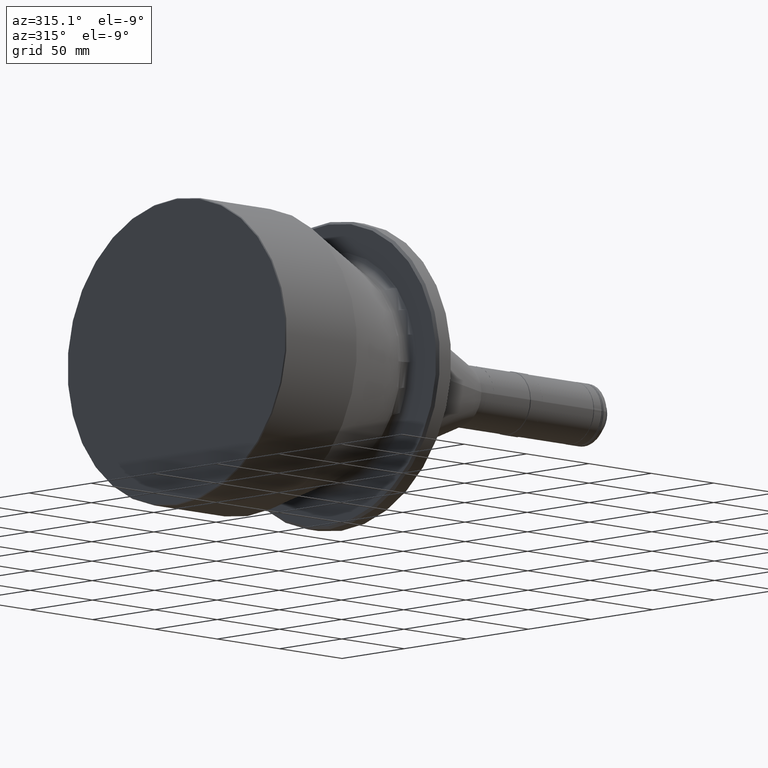
[diagram: clean part render]
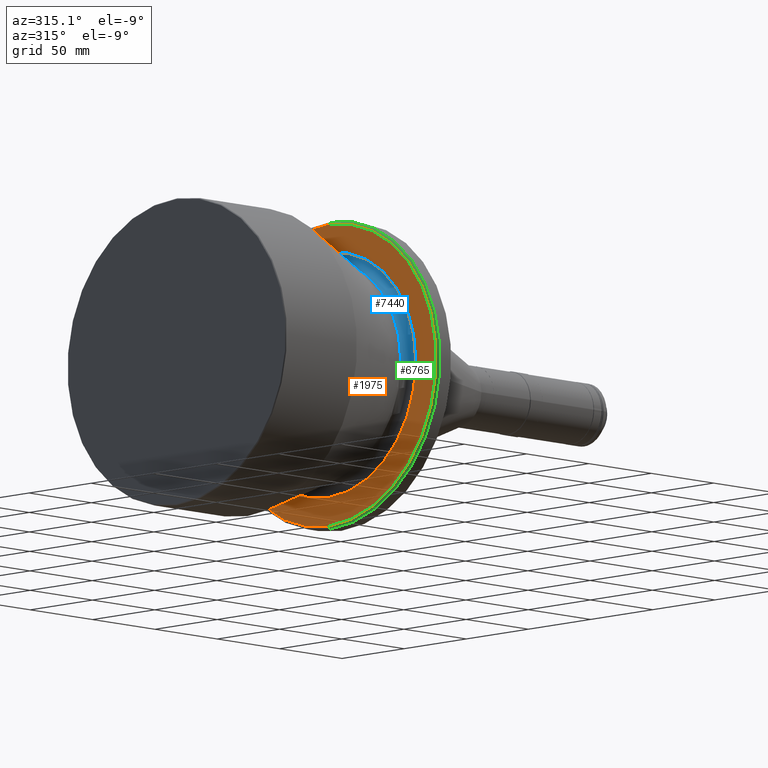
[diagram: same view with three faces highlighted in distinct colors, each labeled with its STEP entity id]
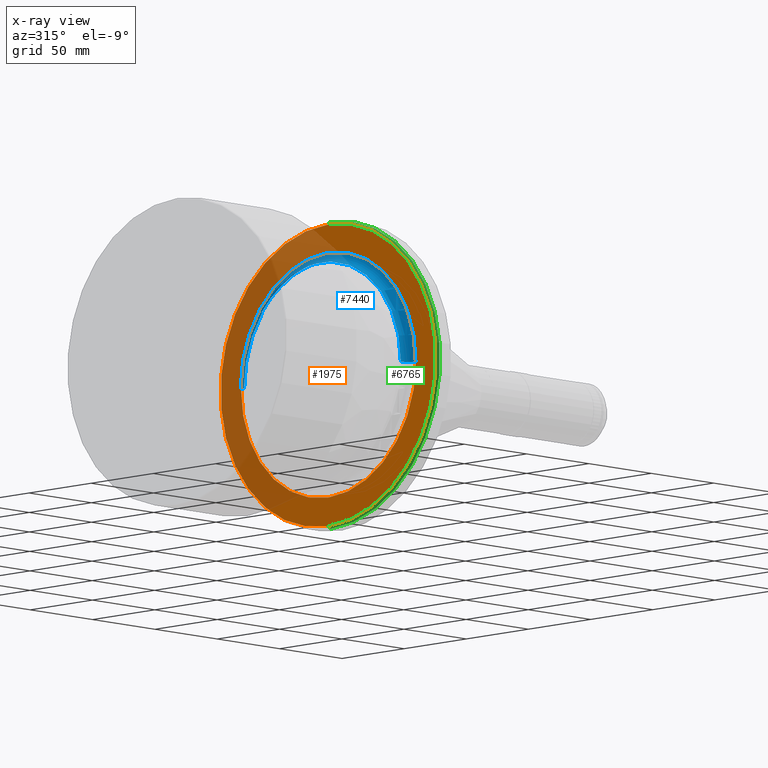
[diagram: x-ray of the same camera — body ghosted, the three highlighted faces saturated]
A machine part, auxiliary view with three faces highlighted in distinct colors.
The next image is the same camera in x-ray (body ghosted, the three faces saturated) — at least one of them is partly hidden behind the body in this view.
Their STEP definitions:

[orange] entity #1975 — the highlighted planar face has unit normal (-1, 0, 0).
#327 = ORIENTED_EDGE ( 'NONE', *, *, #5658, .F. ) ;
#517 = AXIS2_PLACEMENT_3D ( 'NONE', #7497, #2226, #5721 ) ;
#642 = VERTEX_POINT ( 'NONE', #5279 ) ;
#982 = DIRECTION ( 'NONE',  ( 0.0000000000000000000, 1.000000000000000000, 0.0000000000000000000 ) ) ;
#1054 = EDGE_CURVE ( 'NONE', #2488, #1938, #6005, .T. ) ;
#1394 = ORIENTED_EDGE ( 'NONE', *, *, #1054, .F. ) ;
#1938 = VERTEX_POINT ( 'NONE', #6780 ) ;
#1975 = ADVANCED_FACE ( 'NONE', ( #4368, #2650 ), #6394, .T. ) ;
#2226 = DIRECTION ( 'NONE',  ( 1.000000000000000000, 0.0000000000000000000, 0.0000000000000000000 ) ) ;
#2488 = VERTEX_POINT ( 'NONE', #6230 ) ;
#2538 = CARTESIAN_POINT ( 'NONE',  ( 140.0389117159007500, 70.32566734770750800, -68.22315000000000400 ) ) ;
#2639 = CIRCLE ( 'NONE', #6656, 86.74999999936058300 ) ;
#2650 = FACE_OUTER_BOUND ( 'NONE', #4451, .T. ) ;
#2817 = DIRECTION ( 'NONE',  ( -8.492394904561674800E-017, -1.000000000000000000, 0.0000000000000000000 ) ) ;
#3437 = DIRECTION ( 'NONE',  ( 0.0000000000000000000, 1.000000000000000000, 0.0000000000000000000 ) ) ;
#3453 = CARTESIAN_POINT ( 'NONE',  ( 140.0389117155386600, 70.32566734770799100, -68.22315000000000400 ) ) ;
#3478 = EDGE_CURVE ( 'NONE', #4789, #642, #5201, .T. ) ;
#4150 = CIRCLE ( 'NONE', #6216, 70.32566734770797700 ) ;
#4223 = EDGE_LOOP ( 'NONE', ( #6401, #5440 ) ) ;
#4368 = FACE_BOUND ( 'NONE', #4223, .T. ) ;
#4413 = DIRECTION ( 'NONE',  ( 1.000000000000000000, 0.0000000000000000000, 0.0000000000000000000 ) ) ;
#4451 = EDGE_LOOP ( 'NONE', ( #327, #1394 ) ) ;
#4469 = DIRECTION ( 'NONE',  ( 1.000000000000000000, -8.492394904561674800E-017, -0.0000000000000000000 ) ) ;
#4789 = VERTEX_POINT ( 'NONE', #2538 ) ;
#5157 = CARTESIAN_POINT ( 'NONE',  ( 140.0389117159007500, 1.741693405874564100E-014, -68.22315000000000400 ) ) ;
#5201 = CIRCLE ( 'NONE', #6535, 70.32566734770797700 ) ;
#5279 = CARTESIAN_POINT ( 'NONE',  ( 140.0389117159007500, -70.32566734770748000, -68.22314999999999000 ) ) ;
#5440 = ORIENTED_EDGE ( 'NONE', *, *, #6938, .T. ) ;
#5535 = AXIS2_PLACEMENT_3D ( 'NONE', #3453, #5699, #2817 ) ;
#5567 = CARTESIAN_POINT ( 'NONE',  ( 140.0389117159007500, 1.741693405874564100E-014, -68.22315000000000400 ) ) ;
#5658 = EDGE_CURVE ( 'NONE', #1938, #2488, #2639, .T. ) ;
#5699 = DIRECTION ( 'NONE',  ( -1.000000000000000000, 8.492394904561674800E-017, 0.0000000000000000000 ) ) ;
#5721 = DIRECTION ( 'NONE',  ( 0.0000000000000000000, 0.0000000000000000000, -1.000000000000000000 ) ) ;
#6005 = CIRCLE ( 'NONE', #517, 86.74999999936058300 ) ;
#6216 = AXIS2_PLACEMENT_3D ( 'NONE', #5567, #4469, #982 ) ;
#6230 = CARTESIAN_POINT ( 'NONE',  ( 140.0389117151766000, 1.071565949247941000E-014, 18.52684612756058500 ) ) ;
#6394 = PLANE ( 'NONE',  #5535 ) ;
#6401 = ORIENTED_EDGE ( 'NONE', *, *, #3478, .T. ) ;
#6535 = AXIS2_PLACEMENT_3D ( 'NONE', #5157, #6924, #3437 ) ;
#6656 = AXIS2_PLACEMENT_3D ( 'NONE', #7391, #4413, #7317 ) ;
#6780 = CARTESIAN_POINT ( 'NONE',  ( 140.0389117151766000, 0.0000000000000000000, -154.9731538711605800 ) ) ;
#6924 = DIRECTION ( 'NONE',  ( 1.000000000000000000, -8.492394904561674800E-017, -0.0000000000000000000 ) ) ;
#6938 = EDGE_CURVE ( 'NONE', #642, #4789, #4150, .T. ) ;
#7317 = DIRECTION ( 'NONE',  ( 0.0000000000000000000, 0.0000000000000000000, -1.000000000000000000 ) ) ;
#7391 = CARTESIAN_POINT ( 'NONE',  ( 140.0389117151766000, 0.0000000000000000000, -68.22315387180000800 ) ) ;
#7497 = CARTESIAN_POINT ( 'NONE',  ( 140.0389117151766000, 0.0000000000000000000, -68.22315387180000800 ) ) ;

[blue] entity #7440 — the highlighted toroidal blend (fillet) surface has major radius 70.3411 mm and minor (blend) radius 6.0103 mm.
#180 = ORIENTED_EDGE ( 'NONE', *, *, #336, .T. ) ;
#294 = AXIS2_PLACEMENT_3D ( 'NONE', #4438, #363, #4515 ) ;
#336 = EDGE_CURVE ( 'NONE', #7074, #449, #7329, .T. ) ;
#363 = DIRECTION ( 'NONE',  ( 0.0000000000000000000, 0.0000000000000000000, -1.000000000000000000 ) ) ;
#449 = VERTEX_POINT ( 'NONE', #3262 ) ;
#642 = VERTEX_POINT ( 'NONE', #5279 ) ;
#685 = CARTESIAN_POINT ( 'NONE',  ( 134.0286141176156900, 1.387778780781445700E-014, -68.22315000000000400 ) ) ;
#733 = ORIENTED_EDGE ( 'NONE', *, *, #760, .F. ) ;
#760 = EDGE_CURVE ( 'NONE', #642, #449, #3567, .T. ) ;
#1384 = DIRECTION ( 'NONE',  ( 0.0000000000000000000, -1.000000000000000000, 0.0000000000000000000 ) ) ;
#1943 = CARTESIAN_POINT ( 'NONE',  ( 134.0286141176156900, 1.387778780781445700E-014, -68.22315000000000400 ) ) ;
#2538 = CARTESIAN_POINT ( 'NONE',  ( 140.0389117159007500, 70.32566734770750800, -68.22315000000000400 ) ) ;
#3262 = CARTESIAN_POINT ( 'NONE',  ( 134.0286141176156900, -64.33075644849722600, -68.22314999999999000 ) ) ;
#3437 = DIRECTION ( 'NONE',  ( 0.0000000000000000000, 1.000000000000000000, 0.0000000000000000000 ) ) ;
#3478 = EDGE_CURVE ( 'NONE', #4789, #642, #5201, .T. ) ;
#3567 = CIRCLE ( 'NONE', #7281, 6.010317344242288600 ) ;
#3577 = ORIENTED_EDGE ( 'NONE', *, *, #5644, .T. ) ;
#4262 = CARTESIAN_POINT ( 'NONE',  ( 134.0286141176156900, -70.34107379273952200, -68.22314999999999000 ) ) ;
#4438 = CARTESIAN_POINT ( 'NONE',  ( 134.0286141176156900, 70.34107379273955000, -68.22315000000000400 ) ) ;
#4515 = DIRECTION ( 'NONE',  ( -1.000000000000000000, 0.0000000000000000000, 0.0000000000000000000 ) ) ;
#4789 = VERTEX_POINT ( 'NONE', #2538 ) ;
#5103 = AXIS2_PLACEMENT_3D ( 'NONE', #685, #6490, #7112 ) ;
#5157 = CARTESIAN_POINT ( 'NONE',  ( 140.0389117159007500, 1.741693405874564100E-014, -68.22315000000000400 ) ) ;
#5201 = CIRCLE ( 'NONE', #6535, 70.32566734770797700 ) ;
#5279 = CARTESIAN_POINT ( 'NONE',  ( 140.0389117159007500, -70.32566734770748000, -68.22314999999999000 ) ) ;
#5370 = AXIS2_PLACEMENT_3D ( 'NONE', #1943, #5473, #7255 ) ;
#5473 = DIRECTION ( 'NONE',  ( 1.000000000000000000, -8.492394904561674800E-017, -0.0000000000000000000 ) ) ;
#5644 = EDGE_CURVE ( 'NONE', #4789, #7074, #5710, .T. ) ;
#5683 = EDGE_LOOP ( 'NONE', ( #3577, #180, #733, #6276 ) ) ;
#5710 = CIRCLE ( 'NONE', #294, 6.010317344242288600 ) ;
#6276 = ORIENTED_EDGE ( 'NONE', *, *, #3478, .F. ) ;
#6418 = TOROIDAL_SURFACE ( 'NONE', #5103, 70.34107379273953600, 6.010317344242288600 ) ;
#6490 = DIRECTION ( 'NONE',  ( 1.000000000000000000, -8.492394904561674800E-017, -0.0000000000000000000 ) ) ;
#6535 = AXIS2_PLACEMENT_3D ( 'NONE', #5157, #6924, #3437 ) ;
#6567 = CARTESIAN_POINT ( 'NONE',  ( 134.0286141176156900, 64.33075644849725400, -68.22315000000000400 ) ) ;
#6699 = FACE_OUTER_BOUND ( 'NONE', #5683, .T. ) ;
#6924 = DIRECTION ( 'NONE',  ( 1.000000000000000000, -8.492394904561674800E-017, -0.0000000000000000000 ) ) ;
#7074 = VERTEX_POINT ( 'NONE', #6567 ) ;
#7112 = DIRECTION ( 'NONE',  ( 8.492394904561674800E-017, 1.000000000000000000, 0.0000000000000000000 ) ) ;
#7197 = DIRECTION ( 'NONE',  ( 1.040018423696674700E-032, 1.224646799147353200E-016, 1.000000000000000000 ) ) ;
#7255 = DIRECTION ( 'NONE',  ( 0.0000000000000000000, 1.000000000000000000, 0.0000000000000000000 ) ) ;
#7281 = AXIS2_PLACEMENT_3D ( 'NONE', #4262, #7197, #1384 ) ;
#7329 = CIRCLE ( 'NONE', #5370, 64.33075644849724000 ) ;
#7440 = ADVANCED_FACE ( 'NONE', ( #6699 ), #6418, .F. ) ;

[green] entity #6765 — the highlighted conical surface has half-angle 45 deg.
#34 = VECTOR ( 'NONE', #3544, 999.9999999999998900 ) ;
#387 = DIRECTION ( 'NONE',  ( 0.7071067812025821900, 0.0000000000000000000, -0.7071067811705130700 ) ) ;
#517 = AXIS2_PLACEMENT_3D ( 'NONE', #7497, #2226, #5721 ) ;
#645 = LINE ( 'NONE', #1877, #2741 ) ;
#690 = CARTESIAN_POINT ( 'NONE',  ( 140.0389117151766000, 0.0000000000000000000, -68.22315387180000800 ) ) ;
#712 = DIRECTION ( 'NONE',  ( 1.000000000000000000, 0.0000000000000000000, 0.0000000000000000000 ) ) ;
#1054 = EDGE_CURVE ( 'NONE', #2488, #1938, #6005, .T. ) ;
#1215 = EDGE_CURVE ( 'NONE', #2488, #6329, #7467, .T. ) ;
#1251 = CARTESIAN_POINT ( 'NONE',  ( 140.0389117151766000, 1.062381098252498300E-014, 18.52684612756058500 ) ) ;
#1412 = CARTESIAN_POINT ( 'NONE',  ( 141.5389117155446900, 1.080750800245706100E-014, 20.02684612786062600 ) ) ;
#1527 = AXIS2_PLACEMENT_3D ( 'NONE', #5831, #1817, #7044 ) ;
#1529 = EDGE_CURVE ( 'NONE', #6329, #7230, #3007, .T. ) ;
#1712 = EDGE_LOOP ( 'NONE', ( #6068, #6594, #3891, #3362 ) ) ;
#1817 = DIRECTION ( 'NONE',  ( 1.000000000000000000, 0.0000000000000000000, 0.0000000000000000000 ) ) ;
#1877 = CARTESIAN_POINT ( 'NONE',  ( 140.0389117151766000, 0.0000000000000000000, -154.9731538711605800 ) ) ;
#1938 = VERTEX_POINT ( 'NONE', #6780 ) ;
#2226 = DIRECTION ( 'NONE',  ( 1.000000000000000000, 0.0000000000000000000, 0.0000000000000000000 ) ) ;
#2256 = EDGE_CURVE ( 'NONE', #1938, #7230, #645, .T. ) ;
#2281 = AXIS2_PLACEMENT_3D ( 'NONE', #690, #712, #3596 ) ;
#2488 = VERTEX_POINT ( 'NONE', #6230 ) ;
#2741 = VECTOR ( 'NONE', #387, 999.9999999999998900 ) ;
#3007 = CIRCLE ( 'NONE', #1527, 88.24999999966060200 ) ;
#3056 = CONICAL_SURFACE ( 'NONE', #2281, 86.74999999936058300, 0.7853981633747719700 ) ;
#3362 = ORIENTED_EDGE ( 'NONE', *, *, #1529, .F. ) ;
#3544 = DIRECTION ( 'NONE',  ( 0.7071067812025821900, 8.659560562158566900E-017, 0.7071067811705130700 ) ) ;
#3596 = DIRECTION ( 'NONE',  ( 0.0000000000000000000, 0.0000000000000000000, -1.000000000000000000 ) ) ;
#3891 = ORIENTED_EDGE ( 'NONE', *, *, #2256, .T. ) ;
#4970 = FACE_OUTER_BOUND ( 'NONE', #1712, .T. ) ;
#5005 = CARTESIAN_POINT ( 'NONE',  ( 141.5389117155446900, 0.0000000000000000000, -156.4731538714606000 ) ) ;
#5721 = DIRECTION ( 'NONE',  ( 0.0000000000000000000, 0.0000000000000000000, -1.000000000000000000 ) ) ;
#5831 = CARTESIAN_POINT ( 'NONE',  ( 141.5389117155446900, 0.0000000000000000000, -68.22315387180000800 ) ) ;
#6005 = CIRCLE ( 'NONE', #517, 86.74999999936058300 ) ;
#6068 = ORIENTED_EDGE ( 'NONE', *, *, #1215, .F. ) ;
#6230 = CARTESIAN_POINT ( 'NONE',  ( 140.0389117151766000, 1.071565949247941000E-014, 18.52684612756058500 ) ) ;
#6329 = VERTEX_POINT ( 'NONE', #1412 ) ;
#6594 = ORIENTED_EDGE ( 'NONE', *, *, #1054, .T. ) ;
#6765 = ADVANCED_FACE ( 'NONE', ( #4970 ), #3056, .T. ) ;
#6780 = CARTESIAN_POINT ( 'NONE',  ( 140.0389117151766000, 0.0000000000000000000, -154.9731538711605800 ) ) ;
#7044 = DIRECTION ( 'NONE',  ( 0.0000000000000000000, 0.0000000000000000000, -1.000000000000000000 ) ) ;
#7230 = VERTEX_POINT ( 'NONE', #5005 ) ;
#7467 = LINE ( 'NONE', #1251, #34 ) ;
#7497 = CARTESIAN_POINT ( 'NONE',  ( 140.0389117151766000, 0.0000000000000000000, -68.22315387180000800 ) ) ;